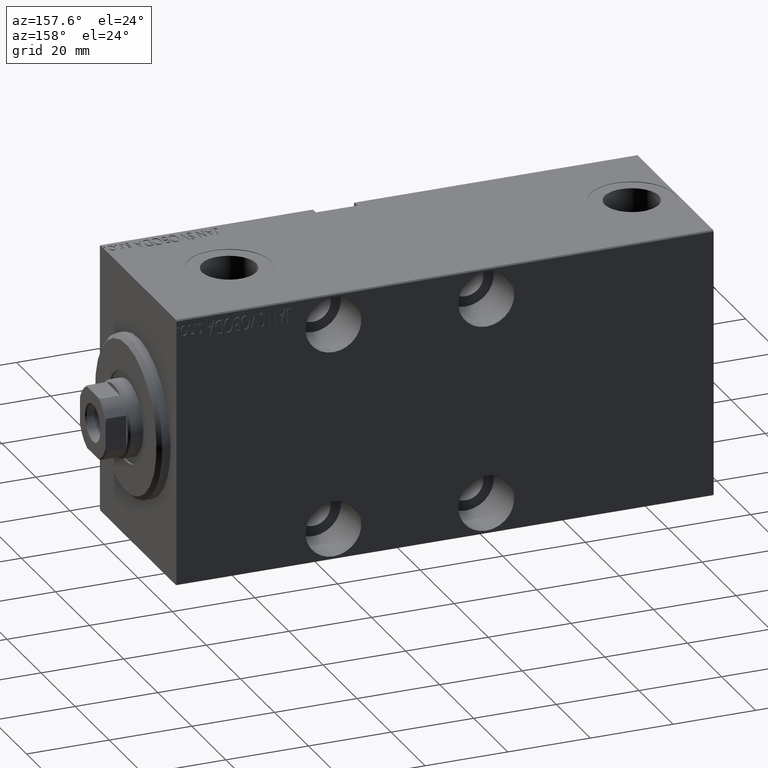
[diagram: clean part render]
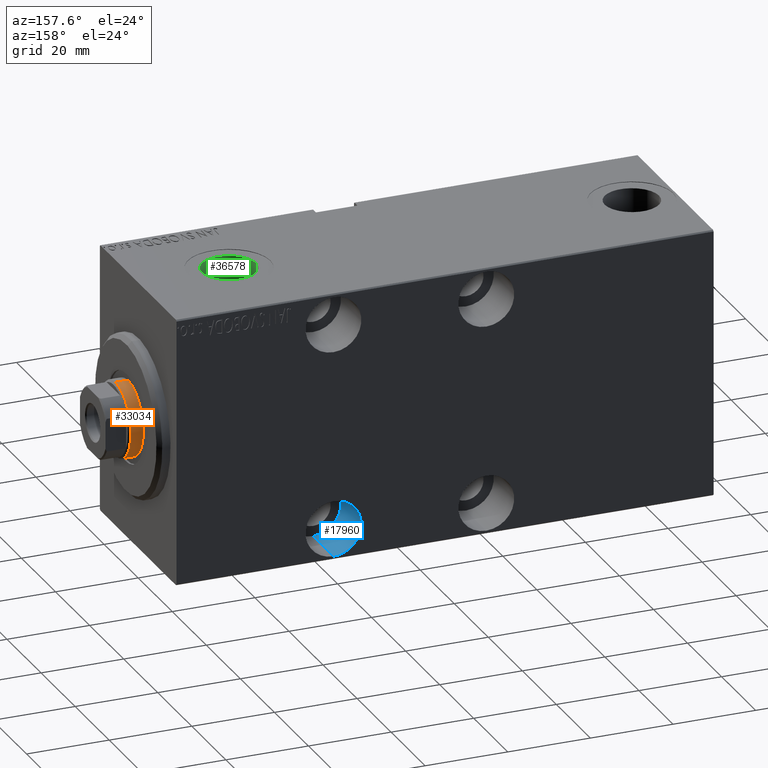
[diagram: same view with three faces highlighted in distinct colors, each labeled with its STEP entity id]
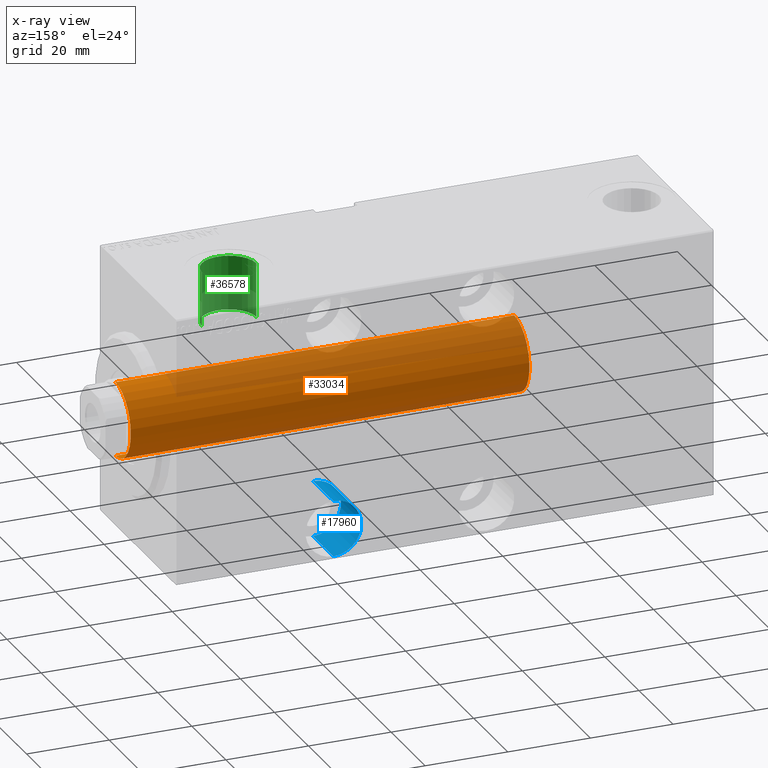
[diagram: x-ray of the same camera — body ghosted, the three highlighted faces saturated]
A machine part, auxiliary view with three faces highlighted in distinct colors.
The next image is the same camera in x-ray (body ghosted, the three faces saturated) — at least one of them is partly hidden behind the body in this view.
Their STEP definitions:

[orange] entity #33034 — the highlighted cylindrical surface (partial cylindrical patch) has radius 9 mm, axis along (-1, -0, 0).
#847 = DIRECTION ( 'NONE',  ( 0.000000000000000000, 0.000000000000000000, 1.000000000000000000 ) ) ;
#1026 = EDGE_CURVE ( 'NONE', #19172, #19989, #17386, .T. ) ;
#1797 = FACE_OUTER_BOUND ( 'NONE', #14840, .T. ) ;
#2024 = CYLINDRICAL_SURFACE ( 'NONE', #38241, 9.000000000000000000 ) ;
#2244 = CARTESIAN_POINT ( 'NONE',  ( 0.000000000000000000, 0.000000000000000000, 130.0000000000000000 ) ) ;
#3515 = ORIENTED_EDGE ( 'NONE', *, *, #8749, .T. ) ;
#4164 = CARTESIAN_POINT ( 'NONE',  ( 0.000000000000000000, 0.000000000000000000, 129.5000000000000568 ) ) ;
#7149 = CARTESIAN_POINT ( 'NONE',  ( -9.000000000000000000, 0.000000000000000000, 129.5000000000000568 ) ) ;
#8460 = DIRECTION ( 'NONE',  ( -0.000000000000000000, -0.000000000000000000, -1.000000000000000000 ) ) ;
#8749 = EDGE_CURVE ( 'NONE', #40308, #19172, #19161, .T. ) ;
#9531 = DIRECTION ( 'NONE',  ( -0.000000000000000000, -0.000000000000000000, -1.000000000000000000 ) ) ;
#10643 = CIRCLE ( 'NONE', #26966, 9.000000000000000000 ) ;
#11502 = CARTESIAN_POINT ( 'NONE',  ( 0.000000000000000000, 0.000000000000000000, 33.00000000000000000 ) ) ;
#12232 = DIRECTION ( 'NONE',  ( -1.000000000000000000, 0.000000000000000000, 0.000000000000000000 ) ) ;
#12596 = CARTESIAN_POINT ( 'NONE',  ( 9.000000000000000000, 1.102182119232617517E-15, 33.00000000000000000 ) ) ;
#13073 = EDGE_CURVE ( 'NONE', #36201, #19989, #26637, .T. ) ;
#13312 = CARTESIAN_POINT ( 'NONE',  ( -9.000000000000000000, 0.000000000000000000, 130.0000000000000000 ) ) ;
#14840 = EDGE_LOOP ( 'NONE', ( #18857, #3515, #43845, #29397 ) ) ;
#17386 = CIRCLE ( 'NONE', #40110, 9.000000000000000000 ) ;
#17488 = DIRECTION ( 'NONE',  ( 0.000000000000000000, 0.000000000000000000, -1.000000000000000000 ) ) ;
#17514 = DIRECTION ( 'NONE',  ( 1.000000000000000000, 0.000000000000000000, 0.000000000000000000 ) ) ;
#18857 = ORIENTED_EDGE ( 'NONE', *, *, #40304, .T. ) ;
#19161 = LINE ( 'NONE', #32058, #29539 ) ;
#19172 = VERTEX_POINT ( 'NONE', #12596 ) ;
#19989 = VERTEX_POINT ( 'NONE', #40357 ) ;
#23668 = VECTOR ( 'NONE', #9531, 1000.000000000000000 ) ;
#26637 = LINE ( 'NONE', #13312, #23668 ) ;
#26966 = AXIS2_PLACEMENT_3D ( 'NONE', #4164, #17488, #27923 ) ;
#27923 = DIRECTION ( 'NONE',  ( 1.000000000000000000, 0.000000000000000000, 0.000000000000000000 ) ) ;
#29397 = ORIENTED_EDGE ( 'NONE', *, *, #13073, .F. ) ;
#29539 = VECTOR ( 'NONE', #36277, 1000.000000000000000 ) ;
#31050 = CARTESIAN_POINT ( 'NONE',  ( 9.000000000000000000, 1.102182119232617517E-15, 129.5000000000000568 ) ) ;
#32058 = CARTESIAN_POINT ( 'NONE',  ( 9.000000000000000000, 1.102182119232617517E-15, 130.0000000000000000 ) ) ;
#33034 = ADVANCED_FACE ( 'NONE', ( #1797 ), #2024, .T. ) ;
#36201 = VERTEX_POINT ( 'NONE', #7149 ) ;
#36277 = DIRECTION ( 'NONE',  ( -0.000000000000000000, -0.000000000000000000, -1.000000000000000000 ) ) ;
#38241 = AXIS2_PLACEMENT_3D ( 'NONE', #2244, #8460, #12232 ) ;
#40110 = AXIS2_PLACEMENT_3D ( 'NONE', #11502, #847, #17514 ) ;
#40304 = EDGE_CURVE ( 'NONE', #36201, #40308, #10643, .T. ) ;
#40308 = VERTEX_POINT ( 'NONE', #31050 ) ;
#40357 = CARTESIAN_POINT ( 'NONE',  ( -9.000000000000000000, 0.000000000000000000, 33.00000000000000000 ) ) ;
#43845 = ORIENTED_EDGE ( 'NONE', *, *, #1026, .T. ) ;

[blue] entity #17960 — the highlighted cylindrical surface (edge-blend (fillet) strip) has radius 6.75 mm, axis along (-0, 1, 0).
#698 = DIRECTION ( 'NONE',  ( 0.000000000000000000, -1.000000000000000000, 0.000000000000000000 ) ) ;
#2118 = CARTESIAN_POINT ( 'NONE',  ( 38.00000000000001421, -10.49999999999999467, -18.25000000000000355 ) ) ;
#5355 = CARTESIAN_POINT ( 'NONE',  ( 38.00000000000001421, -22.49999999999999645, -31.75000000000000711 ) ) ;
#5435 = AXIS2_PLACEMENT_3D ( 'NONE', #21556, #698, #14253 ) ;
#5521 = DIRECTION ( 'NONE',  ( -0.000000000000000000, -1.000000000000000000, -0.000000000000000000 ) ) ;
#8917 = EDGE_CURVE ( 'NONE', #15455, #27623, #15363, .T. ) ;
#10610 = AXIS2_PLACEMENT_3D ( 'NONE', #26831, #17434, #42860 ) ;
#10989 = VECTOR ( 'NONE', #40585, 1000.000000000000000 ) ;
#11568 = FACE_OUTER_BOUND ( 'NONE', #14246, .T. ) ;
#13486 = ORIENTED_EDGE ( 'NONE', *, *, #38850, .T. ) ;
#14246 = EDGE_LOOP ( 'NONE', ( #39306, #14785, #17239, #13486 ) ) ;
#14253 = DIRECTION ( 'NONE',  ( 0.000000000000000000, 0.000000000000000000, -1.000000000000000000 ) ) ;
#14785 = ORIENTED_EDGE ( 'NONE', *, *, #8917, .F. ) ;
#15363 = CIRCLE ( 'NONE', #5435, 6.750000000000002665 ) ;
#15455 = VERTEX_POINT ( 'NONE', #31049 ) ;
#15740 = CARTESIAN_POINT ( 'NONE',  ( 38.00000000000001421, -10.49999999999999467, -18.25000000000000711 ) ) ;
#16272 = CIRCLE ( 'NONE', #10610, 6.750000000000002665 ) ;
#17239 = ORIENTED_EDGE ( 'NONE', *, *, #20949, .T. ) ;
#17434 = DIRECTION ( 'NONE',  ( 0.000000000000000000, -1.000000000000000000, 0.000000000000000000 ) ) ;
#17960 = ADVANCED_FACE ( 'NONE', ( #11568 ), #25117, .F. ) ;
#19471 = CARTESIAN_POINT ( 'NONE',  ( 38.00000000000001421, -10.49999999999999467, -31.75000000000000711 ) ) ;
#20001 = VERTEX_POINT ( 'NONE', #33029 ) ;
#20949 = EDGE_CURVE ( 'NONE', #15455, #38490, #23461, .T. ) ;
#21556 = CARTESIAN_POINT ( 'NONE',  ( 38.00000000000001421, -10.49999999999999467, -25.00000000000000355 ) ) ;
#21784 = DIRECTION ( 'NONE',  ( 0.000000000000000000, 0.000000000000000000, -1.000000000000000000 ) ) ;
#22343 = AXIS2_PLACEMENT_3D ( 'NONE', #36012, #39338, #21784 ) ;
#23461 = LINE ( 'NONE', #19471, #10989 ) ;
#25117 = CYLINDRICAL_SURFACE ( 'NONE', #22343, 6.750000000000002665 ) ;
#26831 = CARTESIAN_POINT ( 'NONE',  ( 38.00000000000001421, -22.49999999999999645, -25.00000000000000355 ) ) ;
#27623 = VERTEX_POINT ( 'NONE', #2118 ) ;
#30670 = EDGE_CURVE ( 'NONE', #27623, #20001, #35971, .T. ) ;
#31049 = CARTESIAN_POINT ( 'NONE',  ( 38.00000000000001421, -10.49999999999999467, -31.75000000000000711 ) ) ;
#33029 = CARTESIAN_POINT ( 'NONE',  ( 38.00000000000001421, -22.49999999999999645, -18.25000000000000355 ) ) ;
#34656 = VECTOR ( 'NONE', #5521, 1000.000000000000000 ) ;
#35971 = LINE ( 'NONE', #15740, #34656 ) ;
#36012 = CARTESIAN_POINT ( 'NONE',  ( 38.00000000000001421, -10.49999999999999467, -25.00000000000000355 ) ) ;
#38490 = VERTEX_POINT ( 'NONE', #5355 ) ;
#38850 = EDGE_CURVE ( 'NONE', #38490, #20001, #16272, .T. ) ;
#39306 = ORIENTED_EDGE ( 'NONE', *, *, #30670, .F. ) ;
#39338 = DIRECTION ( 'NONE',  ( -0.000000000000000000, -1.000000000000000000, -0.000000000000000000 ) ) ;
#40585 = DIRECTION ( 'NONE',  ( -0.000000000000000000, -1.000000000000000000, -0.000000000000000000 ) ) ;
#42860 = DIRECTION ( 'NONE',  ( 0.000000000000000000, 0.000000000000000000, -1.000000000000000000 ) ) ;

[green] entity #36578 — the highlighted cylindrical surface (edge-blend (fillet) strip) has radius 6.58 mm, axis along (0, -0, 1).
#791 = DIRECTION ( 'NONE',  ( 0.000000000000000000, 0.000000000000000000, 1.000000000000000000 ) ) ;
#2893 = EDGE_CURVE ( 'NONE', #35474, #3408, #2947, .T. ) ;
#2947 = LINE ( 'NONE', #40053, #26678 ) ;
#3324 = FACE_OUTER_BOUND ( 'NONE', #41489, .T. ) ;
#3408 = VERTEX_POINT ( 'NONE', #17965 ) ;
#6684 = CARTESIAN_POINT ( 'NONE',  ( 15.41999999999999993, -4.205605781205152358E-15, 19.23999999999999844 ) ) ;
#7973 = CARTESIAN_POINT ( 'NONE',  ( 22.00000000000000000, -5.011423375044110611E-15, 19.23999999999999844 ) ) ;
#8419 = AXIS2_PLACEMENT_3D ( 'NONE', #7973, #14857, #17750 ) ;
#11278 = DIRECTION ( 'NONE',  ( 1.000000000000000000, 0.000000000000000000, 0.000000000000000000 ) ) ;
#14323 = ORIENTED_EDGE ( 'NONE', *, *, #23994, .T. ) ;
#14857 = DIRECTION ( 'NONE',  ( -0.000000000000000000, -0.000000000000000000, 1.000000000000000000 ) ) ;
#14996 = CARTESIAN_POINT ( 'NONE',  ( 22.00000000000000000, -5.011423375044110611E-15, 32.39999999999999858 ) ) ;
#15340 = CIRCLE ( 'NONE', #37326, 6.579999999999999183 ) ;
#16339 = CIRCLE ( 'NONE', #22748, 6.579999999999999183 ) ;
#17016 = VERTEX_POINT ( 'NONE', #25772 ) ;
#17723 = CARTESIAN_POINT ( 'NONE',  ( 22.00000000000000000, -5.011423375044110611E-15, 19.23999999999999844 ) ) ;
#17750 = DIRECTION ( 'NONE',  ( 1.000000000000000000, 0.000000000000000000, 0.000000000000000000 ) ) ;
#17965 = CARTESIAN_POINT ( 'NONE',  ( 15.41999999999999993, -4.205605781205152358E-15, 32.39999999999999858 ) ) ;
#18707 = ORIENTED_EDGE ( 'NONE', *, *, #24239, .T. ) ;
#19459 = LINE ( 'NONE', #22140, #29484 ) ;
#19944 = CARTESIAN_POINT ( 'NONE',  ( 28.57999999999999829, -5.011423375044110611E-15, 19.23999999999999844 ) ) ;
#22140 = CARTESIAN_POINT ( 'NONE',  ( 28.57999999999999829, -5.011423375044110611E-15, 19.23999999999999844 ) ) ;
#22748 = AXIS2_PLACEMENT_3D ( 'NONE', #17723, #24603, #11278 ) ;
#23156 = DIRECTION ( 'NONE',  ( -0.000000000000000000, -0.000000000000000000, 1.000000000000000000 ) ) ;
#23943 = ORIENTED_EDGE ( 'NONE', *, *, #2893, .F. ) ;
#23994 = EDGE_CURVE ( 'NONE', #42675, #17016, #19459, .T. ) ;
#24239 = EDGE_CURVE ( 'NONE', #17016, #3408, #15340, .T. ) ;
#24603 = DIRECTION ( 'NONE',  ( 0.000000000000000000, 0.000000000000000000, 1.000000000000000000 ) ) ;
#24770 = DIRECTION ( 'NONE',  ( 1.000000000000000000, 0.000000000000000000, 0.000000000000000000 ) ) ;
#25772 = CARTESIAN_POINT ( 'NONE',  ( 28.57999999999999829, -5.011423375044110611E-15, 32.39999999999999858 ) ) ;
#26678 = VECTOR ( 'NONE', #23156, 1000.000000000000000 ) ;
#28408 = CYLINDRICAL_SURFACE ( 'NONE', #8419, 6.579999999999999183 ) ;
#29484 = VECTOR ( 'NONE', #33021, 1000.000000000000000 ) ;
#29879 = ORIENTED_EDGE ( 'NONE', *, *, #41826, .F. ) ;
#33021 = DIRECTION ( 'NONE',  ( -0.000000000000000000, -0.000000000000000000, 1.000000000000000000 ) ) ;
#35474 = VERTEX_POINT ( 'NONE', #6684 ) ;
#36578 = ADVANCED_FACE ( 'NONE', ( #3324 ), #28408, .F. ) ;
#37326 = AXIS2_PLACEMENT_3D ( 'NONE', #14996, #791, #24770 ) ;
#40053 = CARTESIAN_POINT ( 'NONE',  ( 15.41999999999999993, -4.205605781205152358E-15, 19.23999999999999844 ) ) ;
#41489 = EDGE_LOOP ( 'NONE', ( #23943, #29879, #14323, #18707 ) ) ;
#41826 = EDGE_CURVE ( 'NONE', #42675, #35474, #16339, .T. ) ;
#42675 = VERTEX_POINT ( 'NONE', #19944 ) ;